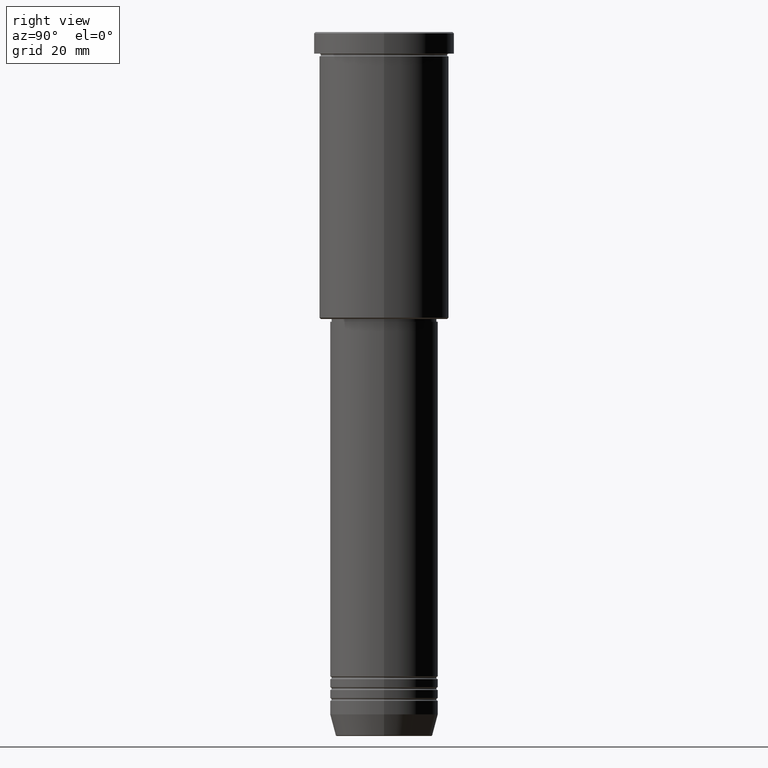
[diagram: clean part render]
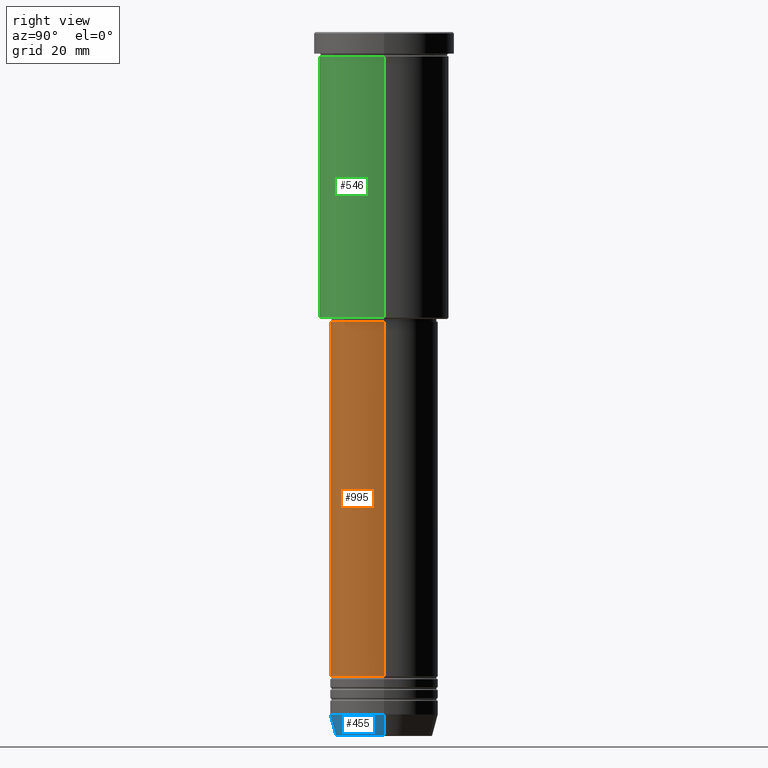
[diagram: same view with three faces highlighted in distinct colors, each labeled with its STEP entity id]
A machine part, right view with three faces highlighted in distinct colors.
Their STEP definitions:

[orange] entity #995 — the highlighted cylindrical surface (partial cylindrical patch) has radius 20 mm, axis along (-0, -0, 1).
#4 = AXIS2_PLACEMENT_3D ( 'NONE', #266, #612, #894 ) ;
#54 = LINE ( 'NONE', #785, #910 ) ;
#101 = FACE_OUTER_BOUND ( 'NONE', #557, .T. ) ;
#122 = CIRCLE ( 'NONE', #523, 20.00000000000000355 ) ;
#124 = DIRECTION ( 'NONE',  ( -0.000000000000000000, -0.000000000000000000, 1.000000000000000000 ) ) ;
#213 = EDGE_CURVE ( 'NONE', #885, #525, #531, .T. ) ;
#235 = VERTEX_POINT ( 'NONE', #994 ) ;
#262 = EDGE_CURVE ( 'NONE', #235, #525, #945, .T. ) ;
#266 = CARTESIAN_POINT ( 'NONE',  ( 0.000000000000000000, 0.000000000000000000, -107.0000000000000142 ) ) ;
#283 = DIRECTION ( 'NONE',  ( 1.000000000000000000, 0.000000000000000000, 0.000000000000000000 ) ) ;
#359 = CARTESIAN_POINT ( 'NONE',  ( 20.00000000000000355, 0.000000000000000000, 0.000000000000000000 ) ) ;
#382 = CYLINDRICAL_SURFACE ( 'NONE', #1113, 20.00000000000000355 ) ;
#400 = DIRECTION ( 'NONE',  ( 1.000000000000000000, 0.000000000000000000, 0.000000000000000000 ) ) ;
#461 = ORIENTED_EDGE ( 'NONE', *, *, #213, .T. ) ;
#499 = CARTESIAN_POINT ( 'NONE',  ( 20.00000000000000355, 0.000000000000000000, -107.0000000000000142 ) ) ;
#519 = ORIENTED_EDGE ( 'NONE', *, *, #262, .F. ) ;
#520 = DIRECTION ( 'NONE',  ( -0.000000000000000000, -0.000000000000000000, 1.000000000000000000 ) ) ;
#523 = AXIS2_PLACEMENT_3D ( 'NONE', #576, #124, #400 ) ;
#525 = VERTEX_POINT ( 'NONE', #499 ) ;
#531 = LINE ( 'NONE', #359, #1074 ) ;
#557 = EDGE_LOOP ( 'NONE', ( #1030, #623, #461, #519 ) ) ;
#576 = CARTESIAN_POINT ( 'NONE',  ( 0.000000000000000000, 0.000000000000000000, -238.0000000000000000 ) ) ;
#612 = DIRECTION ( 'NONE',  ( -0.000000000000000000, -0.000000000000000000, 1.000000000000000000 ) ) ;
#623 = ORIENTED_EDGE ( 'NONE', *, *, #1182, .T. ) ;
#692 = DIRECTION ( 'NONE',  ( -0.000000000000000000, -0.000000000000000000, 1.000000000000000000 ) ) ;
#752 = CARTESIAN_POINT ( 'NONE',  ( 0.000000000000000000, 0.000000000000000000, 0.000000000000000000 ) ) ;
#785 = CARTESIAN_POINT ( 'NONE',  ( -20.00000000000000355, 2.449293598294706907E-15, 0.000000000000000000 ) ) ;
#807 = CARTESIAN_POINT ( 'NONE',  ( 20.00000000000000355, 0.000000000000000000, -238.0000000000000000 ) ) ;
#833 = EDGE_CURVE ( 'NONE', #902, #235, #54, .T. ) ;
#885 = VERTEX_POINT ( 'NONE', #807 ) ;
#894 = DIRECTION ( 'NONE',  ( 1.000000000000000000, 0.000000000000000000, 0.000000000000000000 ) ) ;
#902 = VERTEX_POINT ( 'NONE', #1004 ) ;
#910 = VECTOR ( 'NONE', #692, 1000.000000000000000 ) ;
#933 = DIRECTION ( 'NONE',  ( -0.000000000000000000, -0.000000000000000000, 1.000000000000000000 ) ) ;
#945 = CIRCLE ( 'NONE', #4, 20.00000000000000355 ) ;
#994 = CARTESIAN_POINT ( 'NONE',  ( -20.00000000000000355, 2.449293598294706907E-15, -107.0000000000000142 ) ) ;
#995 = ADVANCED_FACE ( 'NONE', ( #101 ), #382, .T. ) ;
#1004 = CARTESIAN_POINT ( 'NONE',  ( -20.00000000000000355, 2.449293598294706907E-15, -238.0000000000000000 ) ) ;
#1030 = ORIENTED_EDGE ( 'NONE', *, *, #833, .F. ) ;
#1074 = VECTOR ( 'NONE', #520, 1000.000000000000000 ) ;
#1113 = AXIS2_PLACEMENT_3D ( 'NONE', #752, #933, #283 ) ;
#1182 = EDGE_CURVE ( 'NONE', #902, #885, #122, .T. ) ;

[blue] entity #455 — the highlighted conical surface has half-angle 15 deg.
#20 = CARTESIAN_POINT ( 'NONE',  ( -17.95570587970608045, 2.324116685748021371E-15, -259.6294095225512706 ) ) ;
#21 = ORIENTED_EDGE ( 'NONE', *, *, #1050, .T. ) ;
#52 = VERTEX_POINT ( 'NONE', #20 ) ;
#60 = DIRECTION ( 'NONE',  ( -0.2588190451025212391, 3.169619151431771721E-17, 0.9659258262890680902 ) ) ;
#68 = ORIENTED_EDGE ( 'NONE', *, *, #493, .F. ) ;
#118 = CARTESIAN_POINT ( 'NONE',  ( 0.000000000000000000, 0.000000000000000000, -252.0000000000000000 ) ) ;
#176 = AXIS2_PLACEMENT_3D ( 'NONE', #118, #552, #279 ) ;
#200 = DIRECTION ( 'NONE',  ( 0.2588190451025212391, 0.000000000000000000, 0.9659258262890680902 ) ) ;
#212 = ORIENTED_EDGE ( 'NONE', *, *, #837, .T. ) ;
#221 = VECTOR ( 'NONE', #200, 1000.000000000000114 ) ;
#279 = DIRECTION ( 'NONE',  ( 1.000000000000000000, 0.000000000000000000, 0.000000000000000000 ) ) ;
#288 = CARTESIAN_POINT ( 'NONE',  ( 20.00000000000000355, 0.000000000000000000, -252.0000000000000000 ) ) ;
#295 = VERTEX_POINT ( 'NONE', #626 ) ;
#378 = LINE ( 'NONE', #288, #221 ) ;
#455 = ADVANCED_FACE ( 'NONE', ( #463 ), #1076, .T. ) ;
#463 = FACE_OUTER_BOUND ( 'NONE', #586, .T. ) ;
#482 = CIRCLE ( 'NONE', #1093, 17.95570587970608045 ) ;
#493 = EDGE_CURVE ( 'NONE', #52, #667, #952, .T. ) ;
#541 = DIRECTION ( 'NONE',  ( -0.000000000000000000, -0.000000000000000000, 1.000000000000000000 ) ) ;
#552 = DIRECTION ( 'NONE',  ( -0.000000000000000000, -0.000000000000000000, 1.000000000000000000 ) ) ;
#586 = EDGE_LOOP ( 'NONE', ( #68, #212, #21, #1026 ) ) ;
#622 = CARTESIAN_POINT ( 'NONE',  ( 0.000000000000000000, 0.000000000000000000, -252.0000000000000000 ) ) ;
#626 = CARTESIAN_POINT ( 'NONE',  ( 17.95570587970608045, 0.000000000000000000, -259.6294095225512706 ) ) ;
#667 = VERTEX_POINT ( 'NONE', #898 ) ;
#701 = DIRECTION ( 'NONE',  ( 1.000000000000000000, 0.000000000000000000, 0.000000000000000000 ) ) ;
#736 = DIRECTION ( 'NONE',  ( 1.000000000000000000, 0.000000000000000000, 0.000000000000000000 ) ) ;
#776 = AXIS2_PLACEMENT_3D ( 'NONE', #622, #541, #736 ) ;
#792 = VECTOR ( 'NONE', #60, 1000.000000000000114 ) ;
#837 = EDGE_CURVE ( 'NONE', #52, #295, #482, .T. ) ;
#869 = CIRCLE ( 'NONE', #776, 20.00000000000000355 ) ;
#872 = VERTEX_POINT ( 'NONE', #1176 ) ;
#882 = DIRECTION ( 'NONE',  ( -0.000000000000000000, -0.000000000000000000, 1.000000000000000000 ) ) ;
#898 = CARTESIAN_POINT ( 'NONE',  ( -20.00000000000000355, 2.449293598294706907E-15, -252.0000000000000000 ) ) ;
#949 = EDGE_CURVE ( 'NONE', #667, #872, #869, .T. ) ;
#952 = LINE ( 'NONE', #966, #792 ) ;
#966 = CARTESIAN_POINT ( 'NONE',  ( -20.00000000000000355, 2.449293598294706907E-15, -252.0000000000000000 ) ) ;
#970 = CARTESIAN_POINT ( 'NONE',  ( 0.000000000000000000, 0.000000000000000000, -259.6294095225512706 ) ) ;
#1026 = ORIENTED_EDGE ( 'NONE', *, *, #949, .F. ) ;
#1050 = EDGE_CURVE ( 'NONE', #295, #872, #378, .T. ) ;
#1076 = CONICAL_SURFACE ( 'NONE', #176, 20.00000000000000355, 0.2617993877991499629 ) ;
#1093 = AXIS2_PLACEMENT_3D ( 'NONE', #970, #882, #701 ) ;
#1176 = CARTESIAN_POINT ( 'NONE',  ( 20.00000000000000355, 0.000000000000000000, -252.0000000000000000 ) ) ;

[green] entity #546 — the highlighted cylindrical surface (partial cylindrical patch) has radius 24 mm, axis along (-0, -0, 1).
#25 = CARTESIAN_POINT ( 'NONE',  ( 0.000000000000000000, 0.000000000000000000, -8.999999999999994671 ) ) ;
#51 = DIRECTION ( 'NONE',  ( -0.000000000000000000, -0.000000000000000000, 1.000000000000000000 ) ) ;
#56 = CARTESIAN_POINT ( 'NONE',  ( 0.000000000000000000, 0.000000000000000000, 0.000000000000000000 ) ) ;
#102 = CARTESIAN_POINT ( 'NONE',  ( -24.00000000000000000, 2.939152317953647894E-15, 0.000000000000000000 ) ) ;
#120 = AXIS2_PLACEMENT_3D ( 'NONE', #25, #937, #1119 ) ;
#126 = DIRECTION ( 'NONE',  ( -0.000000000000000000, -0.000000000000000000, 1.000000000000000000 ) ) ;
#131 = DIRECTION ( 'NONE',  ( 1.000000000000000000, 0.000000000000000000, 0.000000000000000000 ) ) ;
#134 = DIRECTION ( 'NONE',  ( -0.000000000000000000, -0.000000000000000000, 1.000000000000000000 ) ) ;
#173 = EDGE_CURVE ( 'NONE', #390, #513, #555, .T. ) ;
#222 = ORIENTED_EDGE ( 'NONE', *, *, #421, .F. ) ;
#234 = FACE_OUTER_BOUND ( 'NONE', #656, .T. ) ;
#275 = AXIS2_PLACEMENT_3D ( 'NONE', #56, #126, #131 ) ;
#307 = CARTESIAN_POINT ( 'NONE',  ( -24.00000000000000000, 2.939152317953647894E-15, -8.999999999999994671 ) ) ;
#390 = VERTEX_POINT ( 'NONE', #647 ) ;
#421 = EDGE_CURVE ( 'NONE', #513, #672, #925, .T. ) ;
#432 = DIRECTION ( 'NONE',  ( -0.000000000000000000, -0.000000000000000000, 1.000000000000000000 ) ) ;
#489 = CARTESIAN_POINT ( 'NONE',  ( 24.00000000000000000, 0.000000000000000000, 0.000000000000000000 ) ) ;
#513 = VERTEX_POINT ( 'NONE', #307 ) ;
#532 = EDGE_CURVE ( 'NONE', #891, #672, #879, .T. ) ;
#537 = VECTOR ( 'NONE', #432, 1000.000000000000000 ) ;
#546 = ADVANCED_FACE ( 'NONE', ( #234 ), #1060, .T. ) ;
#555 = LINE ( 'NONE', #102, #537 ) ;
#558 = AXIS2_PLACEMENT_3D ( 'NONE', #710, #134, #1049 ) ;
#647 = CARTESIAN_POINT ( 'NONE',  ( -24.00000000000000000, 2.939152317953647894E-15, -105.4999999999998863 ) ) ;
#655 = VECTOR ( 'NONE', #51, 1000.000000000000000 ) ;
#656 = EDGE_LOOP ( 'NONE', ( #789, #766, #724, #222 ) ) ;
#672 = VERTEX_POINT ( 'NONE', #976 ) ;
#710 = CARTESIAN_POINT ( 'NONE',  ( 0.000000000000000000, 0.000000000000000000, -105.4999999999998863 ) ) ;
#724 = ORIENTED_EDGE ( 'NONE', *, *, #532, .T. ) ;
#766 = ORIENTED_EDGE ( 'NONE', *, *, #806, .T. ) ;
#789 = ORIENTED_EDGE ( 'NONE', *, *, #173, .F. ) ;
#806 = EDGE_CURVE ( 'NONE', #390, #891, #926, .T. ) ;
#879 = LINE ( 'NONE', #489, #655 ) ;
#891 = VERTEX_POINT ( 'NONE', #989 ) ;
#925 = CIRCLE ( 'NONE', #120, 24.00000000000000000 ) ;
#926 = CIRCLE ( 'NONE', #558, 24.00000000000000000 ) ;
#937 = DIRECTION ( 'NONE',  ( -0.000000000000000000, -0.000000000000000000, 1.000000000000000000 ) ) ;
#976 = CARTESIAN_POINT ( 'NONE',  ( 24.00000000000000000, 0.000000000000000000, -8.999999999999994671 ) ) ;
#989 = CARTESIAN_POINT ( 'NONE',  ( 24.00000000000000000, 0.000000000000000000, -105.4999999999998863 ) ) ;
#1049 = DIRECTION ( 'NONE',  ( -1.000000000000000000, 0.000000000000000000, 0.000000000000000000 ) ) ;
#1060 = CYLINDRICAL_SURFACE ( 'NONE', #275, 24.00000000000000000 ) ;
#1119 = DIRECTION ( 'NONE',  ( 1.000000000000000000, 0.000000000000000000, 0.000000000000000000 ) ) ;